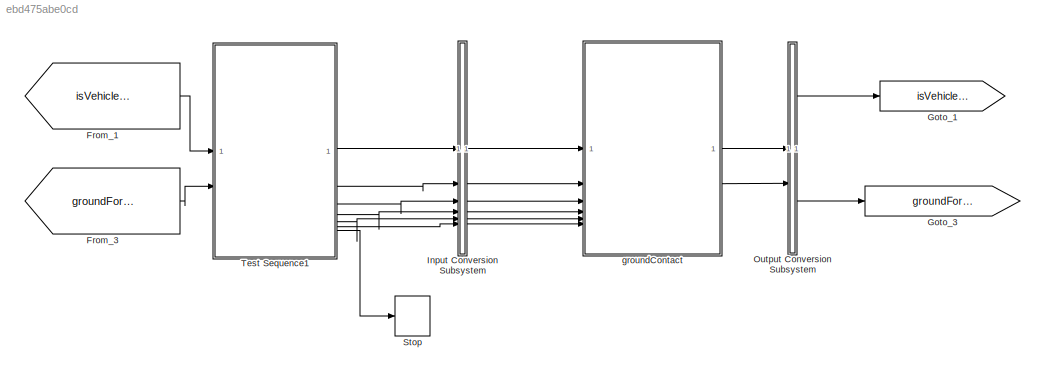
MODEL slx_ebd475abe0cd
KIND model
BLOCK [From] From_1
  GotoTag = isVehicleAirborne
BLOCK [From] From_3
  GotoTag = groundForcesMomentsBus
BLOCK [Goto] Goto_1
  GotoTag = isVehicleAirborne
BLOCK [Goto] Goto_3
  GotoTag = groundForcesMomentsBus
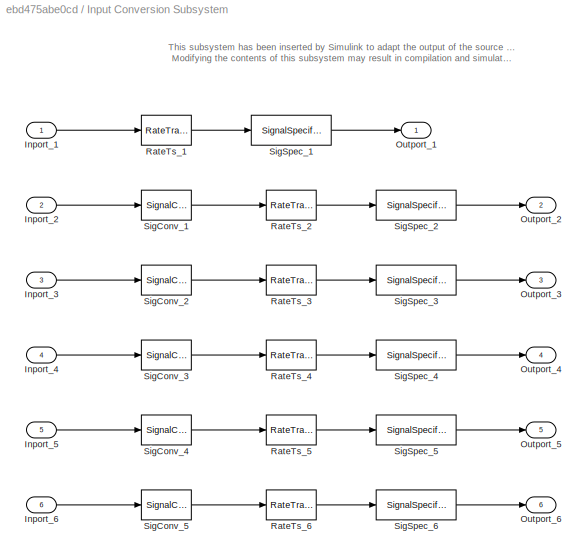
BLOCK [SubSystem] Input Conversion Subsystem
  AttributesFormatString = %<Description>
  Description = Signal spec.\nand routing
  Permissions = ReadOnly
  PermitHierarchicalResolution = ExplicitOnly
  Tag = __SLT_ICS__
  TreatAsGroupedWhenPropagatingVariantConditions = off
  UserDataPersistent = on
BLOCK [Inport] Input Conversion Subsystem/Inport_1
BLOCK [Inport] Input Conversion Subsystem/Inport_2
  Port = 2
BLOCK [Inport] Input Conversion Subsystem/Inport_3
  Port = 3
BLOCK [Inport] Input Conversion Subsystem/Inport_4
  Port = 4
BLOCK [Inport] Input Conversion Subsystem/Inport_5
  Port = 5
BLOCK [Inport] Input Conversion Subsystem/Inport_6
  Port = 6
BLOCK [Outport] Input Conversion Subsystem/Outport_1
BLOCK [Outport] Input Conversion Subsystem/Outport_2
  Port = 2
BLOCK [Outport] Input Conversion Subsystem/Outport_3
  Port = 3
BLOCK [Outport] Input Conversion Subsystem/Outport_4
  Port = 4
BLOCK [Outport] Input Conversion Subsystem/Outport_5
  Port = 5
BLOCK [Outport] Input Conversion Subsystem/Outport_6
  Port = 6
BLOCK [RateTransition] Input Conversion Subsystem/RateTs_1
  OutPortSampleTime = 0.004
BLOCK [RateTransition] Input Conversion Subsystem/RateTs_2
  OutPortSampleTime = 0.004
BLOCK [RateTransition] Input Conversion Subsystem/RateTs_3
  OutPortSampleTime = 0.004
BLOCK [RateTransition] Input Conversion Subsystem/RateTs_4
  OutPortSampleTime = 0.004
BLOCK [RateTransition] Input Conversion Subsystem/RateTs_5
  OutPortSampleTime = 0.004
BLOCK [RateTransition] Input Conversion Subsystem/RateTs_6
  OutPortSampleTime = 0.004
BLOCK [SignalConversion] Input Conversion Subsystem/SigConv_1
  ConversionOutput = Virtual bus
  OverrideOpt = off
BLOCK [SignalConversion] Input Conversion Subsystem/SigConv_2
  ConversionOutput = Virtual bus
  OverrideOpt = off
BLOCK [SignalConversion] Input Conversion Subsystem/SigConv_3
  ConversionOutput = Virtual bus
  OverrideOpt = off
BLOCK [SignalConversion] Input Conversion Subsystem/SigConv_4
  ConversionOutput = Virtual bus
  OverrideOpt = off
BLOCK [SignalConversion] Input Conversion Subsystem/SigConv_5
  ConversionOutput = Virtual bus
  OverrideOpt = off
BLOCK [SignalSpecification] Input Conversion Subsystem/SigSpec_1
  Dimensions = [1]
  OutDataTypeStr = boolean
  SampleTime = 0.004
  SignalType = real
  VarSizeSig = No
BLOCK [SignalSpecification] Input Conversion Subsystem/SigSpec_2
  OutDataTypeStr = Bus: ComponentForcesMomentsBus
BLOCK [SignalSpecification] Input Conversion Subsystem/SigSpec_3
  OutDataTypeStr = Bus: ComponentForcesMomentsBus
BLOCK [SignalSpecification] Input Conversion Subsystem/SigSpec_4
  OutDataTypeStr = Bus: ComponentForcesMomentsBus
BLOCK [SignalSpecification] Input Conversion Subsystem/SigSpec_5
  OutDataTypeStr = Bus: BodyStateBus
BLOCK [SignalSpecification] Input Conversion Subsystem/SigSpec_6
  OutDataTypeStr = Bus: TerrainEnvironmentBus
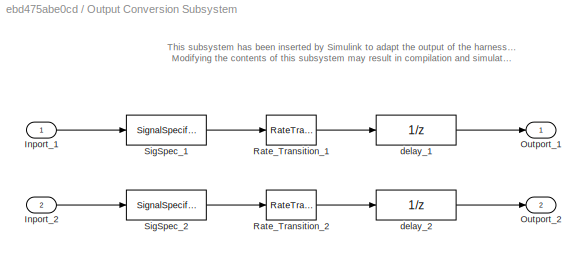
BLOCK [SubSystem] Output Conversion Subsystem
  AttributesFormatString = %<Description>
  Description = Signal spec.\nand routing
  Permissions = ReadOnly
  PermitHierarchicalResolution = ExplicitOnly
  Tag = __SLT_OCS__
  TreatAsGroupedWhenPropagatingVariantConditions = off
  UserDataPersistent = on
BLOCK [Inport] Output Conversion Subsystem/Inport_1
BLOCK [Inport] Output Conversion Subsystem/Inport_2
  Port = 2
BLOCK [Outport] Output Conversion Subsystem/Outport_1
BLOCK [Outport] Output Conversion Subsystem/Outport_2
  Port = 2
BLOCK [RateTransition] Output Conversion Subsystem/Rate_Transition_1
  OutPortSampleTimeOpt = Inherit
BLOCK [RateTransition] Output Conversion Subsystem/Rate_Transition_2
  OutPortSampleTimeOpt = Inherit
BLOCK [SignalSpecification] Output Conversion Subsystem/SigSpec_1
  Dimensions = [1]
  OutDataTypeStr = boolean
  SampleTime = 0.004
  SignalType = real
  VarSizeSig = No
BLOCK [SignalSpecification] Output Conversion Subsystem/SigSpec_2
  Dimensions = [1]
  OutDataTypeStr = Bus: ComponentForcesMomentsBus
  SampleTime = 0.004
  SignalType = real
  VarSizeSig = No
BLOCK [UnitDelay] Output Conversion Subsystem/delay_1
  SampleTime = -1
BLOCK [UnitDelay] Output Conversion Subsystem/delay_2
  InitialCondition = IC2
  SampleTime = -1
BLOCK [Stop] Stop
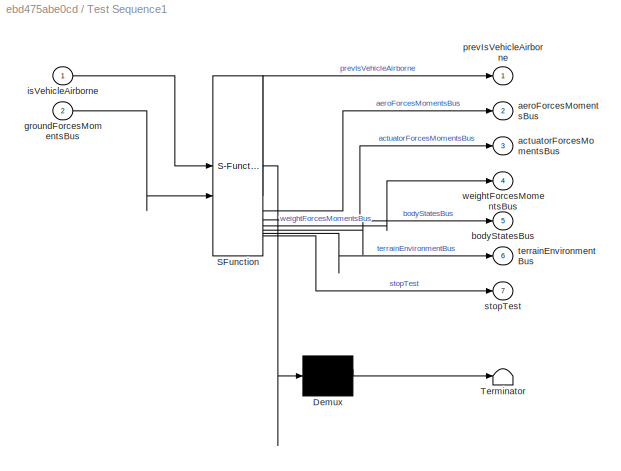
BLOCK [SubSystem] Test Sequence1
  ErrorFcn = Stateflow.Translate.translate
  PermitHierarchicalResolution = ExplicitOnly
  SFBlockType = Test Sequence
  ShowPortLabels = none
  TreatAsAtomicUnit = on
BLOCK [Demux] Test Sequence1/ Demux 
  Outputs = 1
BLOCK [S-Function] Test Sequence1/ SFunction 
  EnableBusSupport = on
  FunctionName = sf_sfun
  Parameters = 1
  PortCounts = [2 8]
  SFcnIsStateOwnerBlock = off
  SFunctionDeploymentMode = off
  Tag = Stateflow S-Function 1
BLOCK [Terminator] Test Sequence1/ Terminator 
BLOCK [Outport] Test Sequence1/actuatorForcesMomentsBus
  Port = 3
BLOCK [Outport] Test Sequence1/aeroForcesMomentsBus
  Port = 2
BLOCK [Outport] Test Sequence1/bodyStatesBus
  Port = 5
BLOCK [Inport] Test Sequence1/groundForcesMomentsBus
  Port = 2
BLOCK [Inport] Test Sequence1/isVehicleAirborne
BLOCK [Outport] Test Sequence1/prevIsVehicleAirborne
BLOCK [Outport] Test Sequence1/stopTest
  Port = 7
BLOCK [Outport] Test Sequence1/terrainEnvironmentBus
  Port = 6
BLOCK [Outport] Test Sequence1/weightForcesMomentsBus
  Port = 4
BLOCK [ModelReference] groundContact
  ModelNameDialog = groundContact
  ModelReferenceVersion = 1.99
ANNOTATION Input Conversion Subsystem: This subsystem has been inserted by Simulink to adapt the output of the source blocks to the interface required by the harnessed component. Modifying the contents of this subsystem may result in compilation and simulation failure.
ANNOTATION Output Conversion Subsystem: This subsystem has been inserted by Simulink to adapt the output of the harnessed component to the interface required by the sink blocks. Modifying the contents of this subsystem may result in compilation and simulation failure.
LINE From_1:1 -> Test Sequence1:1
LINE From_3:1 -> Test Sequence1:2
LINE Input Conversion Subsystem/Inport_1:1 -> Input Conversion Subsystem/RateTs_1:1
LINE Input Conversion Subsystem/Inport_2:1 -> Input Conversion Subsystem/SigConv_1:1
LINE Input Conversion Subsystem/Inport_3:1 -> Input Conversion Subsystem/SigConv_2:1
LINE Input Conversion Subsystem/Inport_4:1 -> Input Conversion Subsystem/SigConv_3:1
LINE Input Conversion Subsystem/Inport_5:1 -> Input Conversion Subsystem/SigConv_4:1
LINE Input Conversion Subsystem/Inport_6:1 -> Input Conversion Subsystem/SigConv_5:1
LINE Input Conversion Subsystem/RateTs_1:1 -> Input Conversion Subsystem/SigSpec_1:1
LINE Input Conversion Subsystem/RateTs_2:1 -> Input Conversion Subsystem/SigSpec_2:1
LINE Input Conversion Subsystem/RateTs_3:1 -> Input Conversion Subsystem/SigSpec_3:1
LINE Input Conversion Subsystem/RateTs_4:1 -> Input Conversion Subsystem/SigSpec_4:1
LINE Input Conversion Subsystem/RateTs_5:1 -> Input Conversion Subsystem/SigSpec_5:1
LINE Input Conversion Subsystem/RateTs_6:1 -> Input Conversion Subsystem/SigSpec_6:1
LINE Input Conversion Subsystem/SigConv_1:1 -> Input Conversion Subsystem/RateTs_2:1
LINE Input Conversion Subsystem/SigConv_2:1 -> Input Conversion Subsystem/RateTs_3:1
LINE Input Conversion Subsystem/SigConv_3:1 -> Input Conversion Subsystem/RateTs_4:1
LINE Input Conversion Subsystem/SigConv_4:1 -> Input Conversion Subsystem/RateTs_5:1
LINE Input Conversion Subsystem/SigConv_5:1 -> Input Conversion Subsystem/RateTs_6:1
LINE Input Conversion Subsystem/SigSpec_1:1 -> Input Conversion Subsystem/Outport_1:1
LINE Input Conversion Subsystem/SigSpec_2:1 -> Input Conversion Subsystem/Outport_2:1
LINE Input Conversion Subsystem/SigSpec_3:1 -> Input Conversion Subsystem/Outport_3:1
LINE Input Conversion Subsystem/SigSpec_4:1 -> Input Conversion Subsystem/Outport_4:1
LINE Input Conversion Subsystem/SigSpec_5:1 -> Input Conversion Subsystem/Outport_5:1
LINE Input Conversion Subsystem/SigSpec_6:1 -> Input Conversion Subsystem/Outport_6:1
LINE Input Conversion Subsystem:1 -> groundContact:1
LINE Input Conversion Subsystem:2 -> groundContact:2
LINE Input Conversion Subsystem:3 -> groundContact:3
LINE Input Conversion Subsystem:4 -> groundContact:4
LINE Input Conversion Subsystem:5 -> groundContact:5
LINE Input Conversion Subsystem:6 -> groundContact:6
LINE Output Conversion Subsystem/Inport_1:1 -> Output Conversion Subsystem/SigSpec_1:1
LINE Output Conversion Subsystem/Inport_2:1 -> Output Conversion Subsystem/SigSpec_2:1
LINE Output Conversion Subsystem/Rate_Transition_1:1 -> Output Conversion Subsystem/delay_1:1
LINE Output Conversion Subsystem/Rate_Transition_2:1 -> Output Conversion Subsystem/delay_2:1
LINE Output Conversion Subsystem/SigSpec_1:1 -> Output Conversion Subsystem/Rate_Transition_1:1
LINE Output Conversion Subsystem/SigSpec_2:1 -> Output Conversion Subsystem/Rate_Transition_2:1
LINE Output Conversion Subsystem/delay_1:1 -> Output Conversion Subsystem/Outport_1:1
LINE Output Conversion Subsystem/delay_2:1 -> Output Conversion Subsystem/Outport_2:1
LINE Output Conversion Subsystem:1 -> Goto_1:1
LINE Output Conversion Subsystem:2 -> Goto_3:1
LINE Test Sequence1:1 -> Input Conversion Subsystem:1
LINE Test Sequence1:2 -> Input Conversion Subsystem:2
LINE Test Sequence1:3 -> Input Conversion Subsystem:3
LINE Test Sequence1:4 -> Input Conversion Subsystem:4
LINE Test Sequence1:5 -> Input Conversion Subsystem:5
LINE Test Sequence1:6 -> Input Conversion Subsystem:6
LINE Test Sequence1:7 -> Stop:1
LINE groundContact:1 -> Output Conversion Subsystem:1
LINE groundContact:2 -> Output Conversion Subsystem:2
CHART Test Sequence1 states=12 transitions=12
  STATE_LABEL 'Scenario_2'
  STATE_LABEL 'Initialize\n%% Initialize data outputs.\nstopTest = false;\naeroForcesMomentsBus.forcesInBody_N = zeros(3,1);\naeroForcesMomentsBus.momentsInBody_Nm = zeros(3,1);\nactuatorForcesMomentsBus.forcesInBody_N = zeros(3,1);\nactuatorForcesMomentsBus.momentsInBody_Nm = zeros(3,1);\nweightForcesMomentsBus.forcesInBody_N = zeros(3,1);\nweightForcesMomentsBus.momentsInBody_Nm = zeros(3,1);\nbodyStatesBus.aircraftVel...<+419ch>'
  STATE_LABEL 'verifyInitialization\nverify(isVehicleAirborne == 0)\nverify(isClose(groundForcesMomentsBus.forcesInBody_N(1),0))\nverify(isClose(groundForcesMomentsBus.forcesInBody_N(2),0))\nverify(isClose(groundForcesMomentsBus.forcesInBody_N(3),0))\n\nverify(isClose(groundForcesMomentsBus.momentsInBody_Nm(1), 0))\nverify(isClose(groundForcesMomentsBus.momentsInBody_Nm(2), 0))\nverify(isClose(groundForcesMomentsBus.mom...<+21ch>'
  STATE_LABEL 'stationaryOnAirstrip\nbodyStatesBus.DCM_be =  eye(3,3);\n\n% test some forces and moments\naeroForcesMomentsBus.forcesInBody_N = [0; 0 ; 0]; % simulating moving on runway\naeroForcesMomentsBus.momentsInBody_Nm = [0; 0; 0]; % Cm is naturally negative\n\nweightForcesMomentsBus.forcesInBody_N =[0; 0; 9298.6 * 9.81]; % weight of vehicle, must be positive (toward earth)\nweightForcesMomentsBus.momentsInBody_Nm...<+14ch>'
  STATE_LABEL 'verifyStationary\nverify(isVehicleAirborne == 0)\nverify(isClose(groundForcesMomentsBus.forcesInBody_N(1), 0))\nverify(isClose(groundForcesMomentsBus.forcesInBody_N(2), 0))\nverify(isClose(groundForcesMomentsBus.forcesInBody_N(3), -9298.6 * 9.81 ))\nverify(isClose(weightForcesMomentsBus.momentsInBody_Nm(1), 0))\nverify(isClose(weightForcesMomentsBus.momentsInBody_Nm(2), 0))\nverify(isClose(weightForcesMo...<+33ch>'
  STATE_LABEL 'fastTaxi\nbodyStatesBus.DCM_be =  eye(3,3);\n\n% test some forces and moments\naeroForcesMomentsBus.forcesInBody_N = [-400; 0 ; -20000]; % simulating moving on runway\naeroForcesMomentsBus.momentsInBody_Nm = [0; -20; 0]; % Cm is naturally negative\n\nweightForcesMomentsBus.forcesInBody_N =[0; 0; 9298.6 * 9.81]; % weight of vehicle\nweightForcesMomentsBus.momentsInBody_Nm = zeros(3,1);'
  STATE_LABEL 'verifyFastTaxi\nverify(isVehicleAirborne == 0)\nverify(isClose(groundForcesMomentsBus.forcesInBody_N(1), 0)) %This should never be non-zero because ground forces only impact Z-axis\nverify(isClose(groundForcesMomentsBus.forcesInBody_N(2), 0))\nverify(isClose(groundForcesMomentsBus.forcesInBody_N(3), -9298.6 * 9.81 + 20000 ))\nverify(isClose(groundForcesMomentsBus.momentsInBody_Nm(1),0))\nverify(isClose(...<+297ch>'
  STATE_LABEL 'rotate\naeroForcesMomentsBus.momentsInBody_Nm = [0; 20; 0]; % Emulate a positive pitch moment\n'
  STATE_LABEL 'verifyRotate\nverify(isVehicleAirborne == 0)\nverify(isClose(groundForcesMomentsBus.forcesInBody_N(1), 0)) %This should never be non-zero because ground forces only impact Z-axis\nverify(isClose(groundForcesMomentsBus.forcesInBody_N(2), 0))\nverify(isClose(groundForcesMomentsBus.forcesInBody_N(3), -9298.6 * 9.81 + 20000 ))\nverify(isClose(groundForcesMomentsBus.momentsInBody_Nm(1),0))\nverify(isClose(gr...<+337ch>'
  STATE_LABEL 'takeoff\n% test some forces and moments\naeroForcesMomentsBus.forcesInBody_N = [-400; 0 ; -100000]; % simulating moving on runway\nbodyStatesBus.aircraftPosInNED_m(3) = -1;\n'
  STATE_LABEL 'verifyTakeoff\nverify(isVehicleAirborne == 1)\nverify(isClose(groundForcesMomentsBus.forcesInBody_N(1), 0))\nverify(isClose(groundForcesMomentsBus.forcesInBody_N(2), 0))\nverify(isClose(groundForcesMomentsBus.forcesInBody_N(3), 0))\nverify(isClose(groundForcesMomentsBus.momentsInBody_Nm(1),0))\nverify(isClose(groundForcesMomentsBus.momentsInBody_Nm(2),0))\nverify(isClose(groundForcesMomentsBus.momentsInB...<+202ch>'
  STATE_LABEL 'EndTest\nstopTest = true;'
  STATE_LABEL '[\nafter(0.5,sec)\n]'
  STATE_LABEL '[\ntrue\n]'
  STATE_LABEL '[\nafter(0.5,sec)\n]'
  STATE_LABEL '[\nafter(1,tick)\n]'
  STATE_LABEL '[\nafter(1,sec)\n]'
  STATE_LABEL '[\nafter(1,tick)\n]'
  STATE_LABEL '[\nafter(1,tick)\n]'
  STATE_LABEL '[\nafter(1,tick)\n]'
  STATE_LABEL '[\nafter(1,tick)\n]'
  STATE_LABEL '[\nafter(1,tick)\n]'
  STATE_LABEL 'Initialize\n%% Initialize data outputs.\nstopTest = false;\naeroForcesMomentsBus.forcesInBody_N = zeros(3,1);\naeroForcesMomentsBus.momentsInBody_Nm = zeros(3,1);\nactuatorForcesMomentsBus.forcesInBody_N = zeros(3,1);\nactuatorForcesMomentsBus.momentsInBody_Nm = zeros(3,1);\nweightForcesMomentsBus.forcesInBody_N = zeros(3,1);\nweightForcesMomentsBus.momentsInBody_Nm = zeros(3,1);\nbodyStatesBus.aircraftVel...<+419ch>'
  STATE_LABEL 'verifyInitialization\nverify(isVehicleAirborne == 0)\nverify(isClose(groundForcesMomentsBus.forcesInBody_N(1),0))\nverify(isClose(groundForcesMomentsBus.forcesInBody_N(2),0))\nverify(isClose(groundForcesMomentsBus.forcesInBody_N(3),0))\n\nverify(isClose(groundForcesMomentsBus.momentsInBody_Nm(1), 0))\nverify(isClose(groundForcesMomentsBus.momentsInBody_Nm(2), 0))\nverify(isClose(groundForcesMomentsBus.mom...<+21ch>'
  STATE_LABEL 'stationaryOnAirstrip\nbodyStatesBus.DCM_be =  eye(3,3);\n\n% test some forces and moments\naeroForcesMomentsBus.forcesInBody_N = [0; 0 ; 0]; % simulating moving on runway\naeroForcesMomentsBus.momentsInBody_Nm = [0; 0; 0]; % Cm is naturally negative\n\nweightForcesMomentsBus.forcesInBody_N =[0; 0; 9298.6 * 9.81]; % weight of vehicle, must be positive (toward earth)\nweightForcesMomentsBus.momentsInBody_Nm...<+14ch>'
  STATE_LABEL 'verifyStationary\nverify(isVehicleAirborne == 0)\nverify(isClose(groundForcesMomentsBus.forcesInBody_N(1), 0))\nverify(isClose(groundForcesMomentsBus.forcesInBody_N(2), 0))\nverify(isClose(groundForcesMomentsBus.forcesInBody_N(3), -9298.6 * 9.81 ))\nverify(isClose(weightForcesMomentsBus.momentsInBody_Nm(1), 0))\nverify(isClose(weightForcesMomentsBus.momentsInBody_Nm(2), 0))\nverify(isClose(weightForcesMo...<+33ch>'
  STATE_LABEL 'fastTaxi\nbodyStatesBus.DCM_be =  eye(3,3);\n\n% test some forces and moments\naeroForcesMomentsBus.forcesInBody_N = [-400; 0 ; -20000]; % simulating moving on runway\naeroForcesMomentsBus.momentsInBody_Nm = [0; -20; 0]; % Cm is naturally negative\n\nweightForcesMomentsBus.forcesInBody_N =[0; 0; 9298.6 * 9.81]; % weight of vehicle\nweightForcesMomentsBus.momentsInBody_Nm = zeros(3,1);'
  STATE_LABEL 'verifyFastTaxi\nverify(isVehicleAirborne == 0)\nverify(isClose(groundForcesMomentsBus.forcesInBody_N(1), 0)) %This should never be non-zero because ground forces only impact Z-axis\nverify(isClose(groundForcesMomentsBus.forcesInBody_N(2), 0))\nverify(isClose(groundForcesMomentsBus.forcesInBody_N(3), -9298.6 * 9.81 + 20000 ))\nverify(isClose(groundForcesMomentsBus.momentsInBody_Nm(1),0))\nverify(isClose(...<+297ch>'
  STATE_LABEL 'rotate\naeroForcesMomentsBus.momentsInBody_Nm = [0; 20; 0]; % Emulate a positive pitch moment\n'
  STATE_LABEL 'verifyRotate\nverify(isVehicleAirborne == 0)\nverify(isClose(groundForcesMomentsBus.forcesInBody_N(1), 0)) %This should never be non-zero because ground forces only impact Z-axis\nverify(isClose(groundForcesMomentsBus.forcesInBody_N(2), 0))\nverify(isClose(groundForcesMomentsBus.forcesInBody_N(3), -9298.6 * 9.81 + 20000 ))\nverify(isClose(groundForcesMomentsBus.momentsInBody_Nm(1),0))\nverify(isClose(gr...<+337ch>'
  STATE_LABEL 'takeoff\n% test some forces and moments\naeroForcesMomentsBus.forcesInBody_N = [-400; 0 ; -100000]; % simulating moving on runway\nbodyStatesBus.aircraftPosInNED_m(3) = -1;\n'
  STATE_LABEL 'verifyTakeoff\nverify(isVehicleAirborne == 1)\nverify(isClose(groundForcesMomentsBus.forcesInBody_N(1), 0))\nverify(isClose(groundForcesMomentsBus.forcesInBody_N(2), 0))\nverify(isClose(groundForcesMomentsBus.forcesInBody_N(3), 0))\nverify(isClose(groundForcesMomentsBus.momentsInBody_Nm(1),0))\nverify(isClose(groundForcesMomentsBus.momentsInBody_Nm(2),0))\nverify(isClose(groundForcesMomentsBus.momentsInB...<+202ch>'
  STATE_LABEL 'EndTest\nstopTest = true;'
